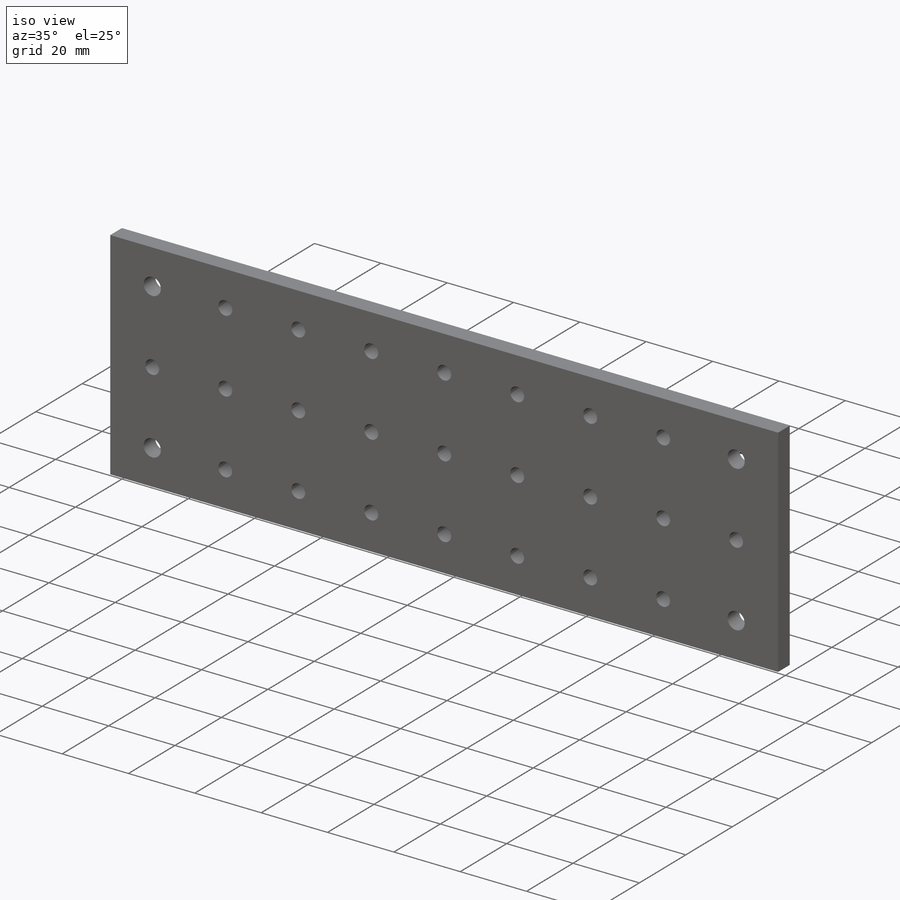
[diagram: iso view]
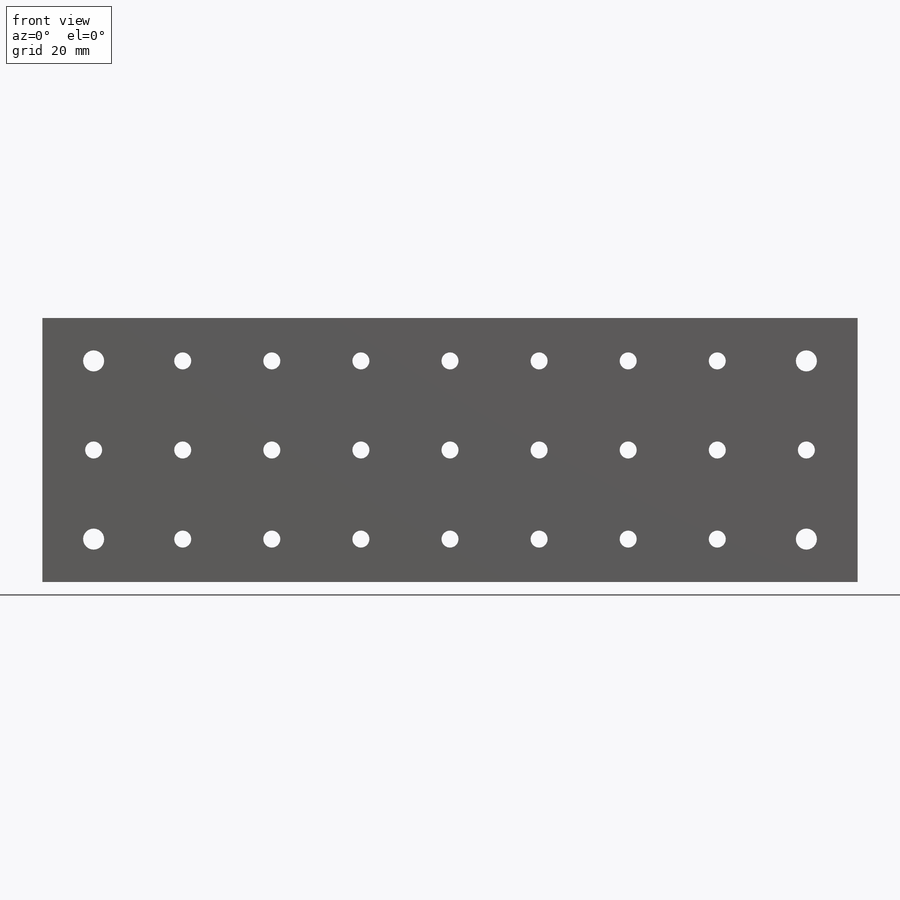
[diagram: front view]
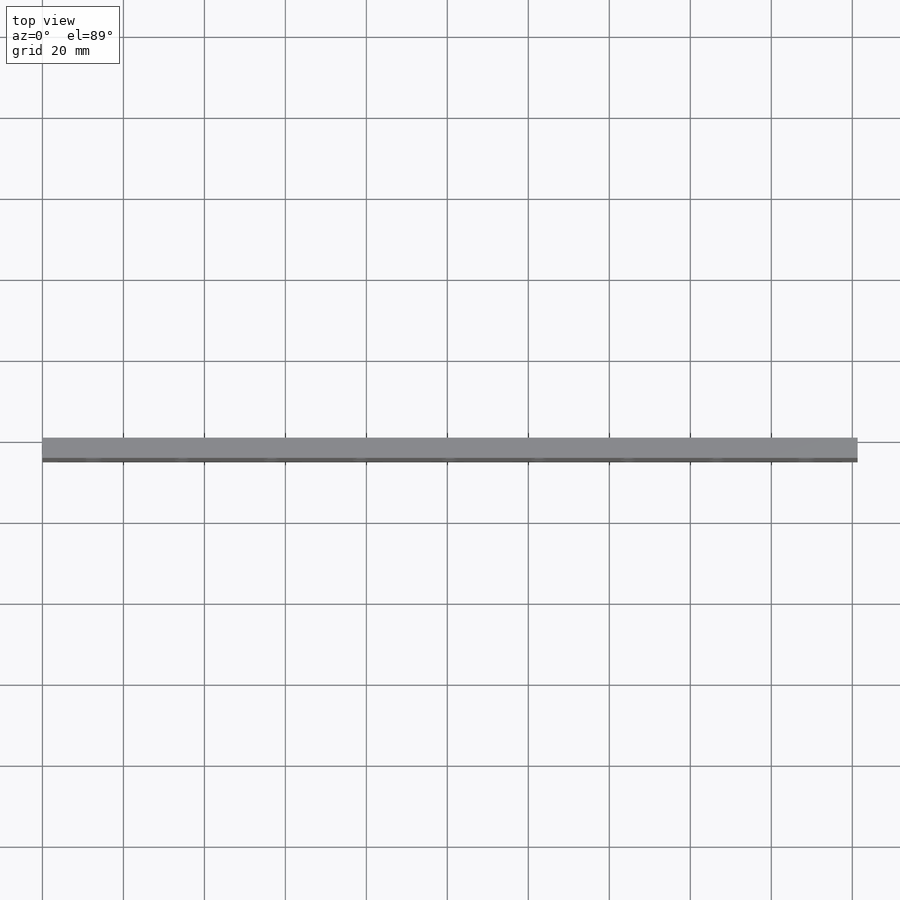
[diagram: top view]
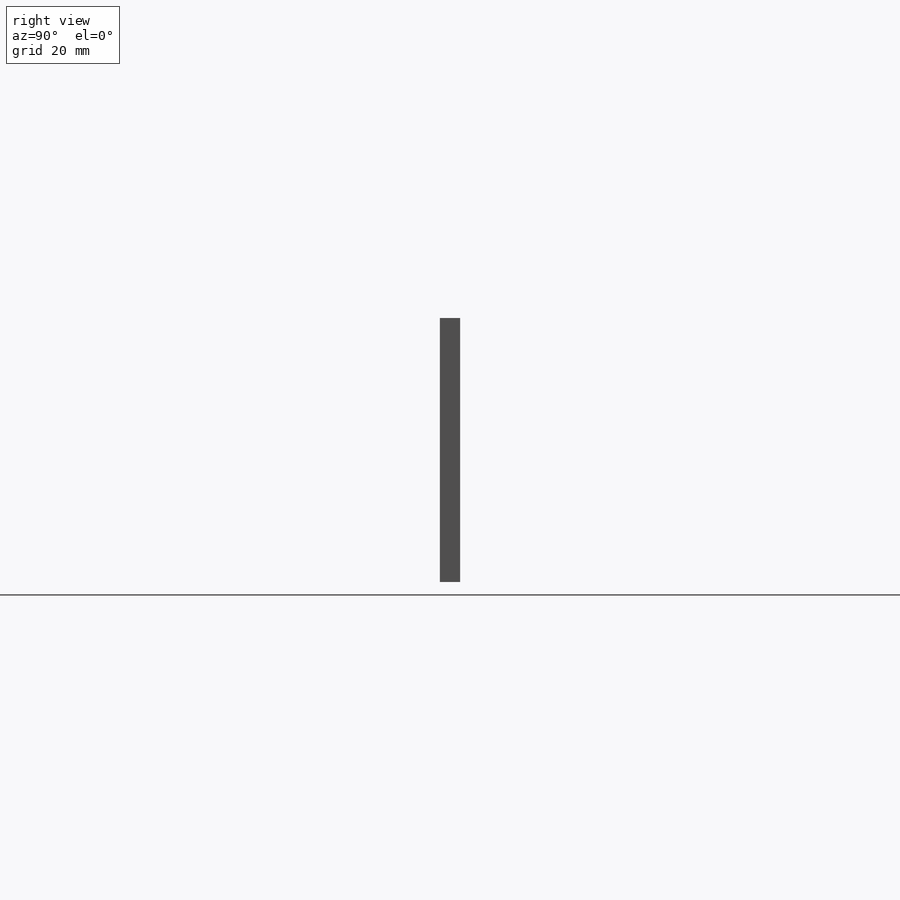
[diagram: right view]
SOLIDWORKS PART (.sldprt)
format: sldprt  version: not decoded by parser v0  size: 245,760 bytes
history: native  units: mm
features: plane x3, sketch x3, cut_extrude x2, material x1, extrude x1 (+10 scaffold rows collapsed)
feature tree (20):
  scaffold x10  (default folders/planes/origin — collapsed)
  material  "Material <não especificado>"
  plane  "Plano frontal"
  plane  "Plano superior"
  plane  "Plano direito"
  sketch  "Esboço1"  dims[D1=201.3mm 65.2=65.2mm]
  extrude  "Ressalto-extrusão1"  Depth=5mm
  sketch  "Esboço2"  dims[D1=4.2mm D2=22.0mm D3=22.0mm D6=22.0mm D7=22.0mm D5=2.0 D4=2.0]
  cut_extrude  "Corte-extrusão1"  Depth=30mm
  sketch  "Esboço3"  dims[D1=5.2mm D2=5.2mm D3=5.2mm D4=5.2mm]
  cut_extrude  "Corte-extrusão2"  Depth=22mm
decode coverage: 6 of 6 modeling features carry decoded parameters
note: suppression state not decoded; provenance and decode notes live in map.json
